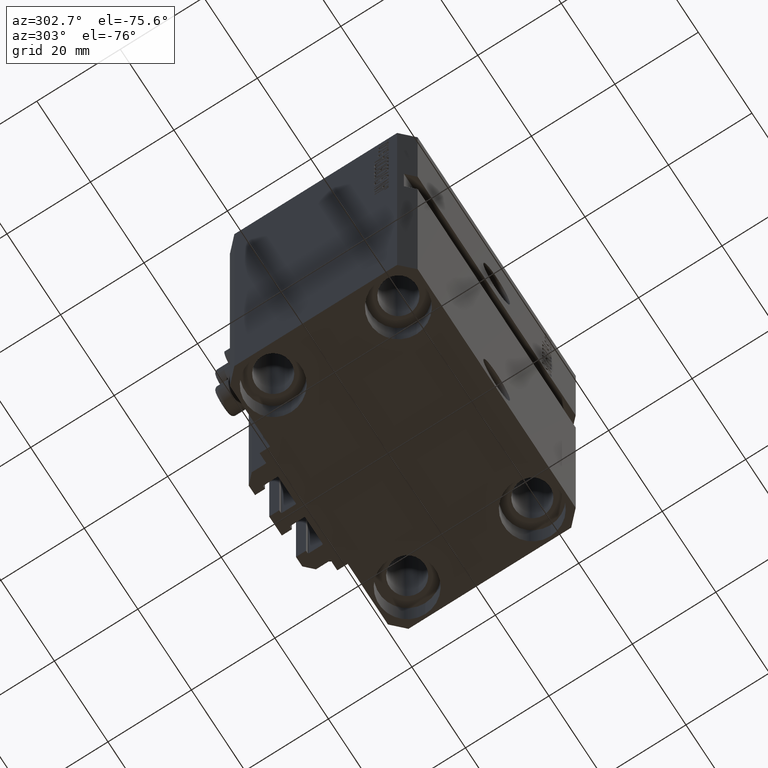
[diagram: clean part render]
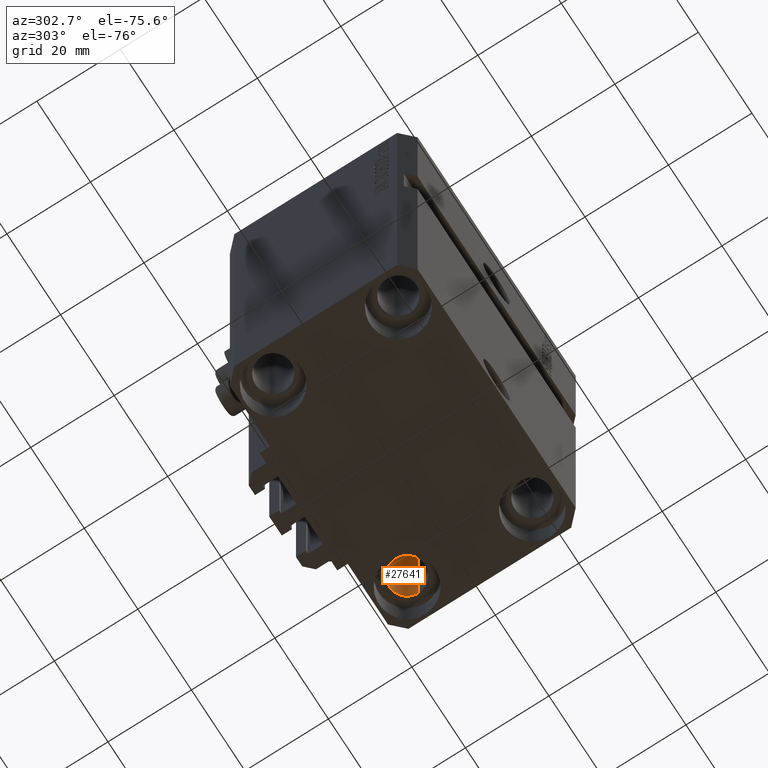
[diagram: same view with one face highlighted and labeled with its STEP entity id]
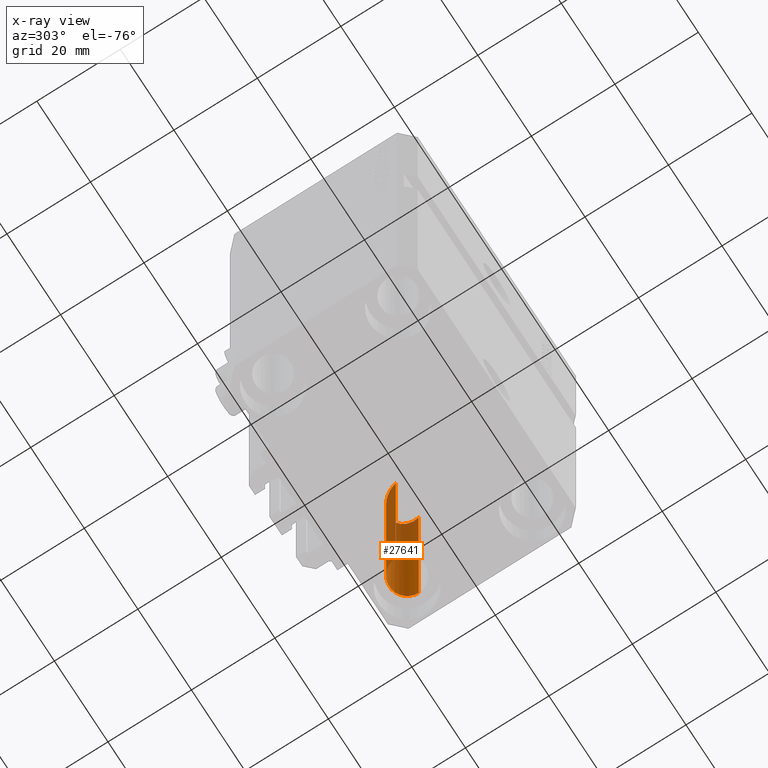
[diagram: x-ray of the same camera — body ghosted, the highlighted face saturated]
A machine part, auxiliary view. The second image highlights one B-rep face of the part: STEP entity #27641.
The next image is the same camera in x-ray: the body ghosted, the highlighted face saturated — about 54% of this face is hidden behind the body in this view.
In plain terms, the highlighted cylindrical surface (edge-blend (fillet) strip) has radius 4.25 mm, axis along (0, 0, 1).
Its self-contained STEP definition (entity closure, byte-faithful):
#196 = CARTESIAN_POINT ( 'NONE',  ( 29.24999999997375255, 15.00000000000000711, -36.99999999999999289 ) ) ;
#1207 = VERTEX_POINT ( 'NONE', #42182 ) ;
#1465 = CARTESIAN_POINT ( 'NONE',  ( 24.99999999999999645, 15.00000000000000888, -98.00000000000000000 ) ) ;
#1676 = VERTEX_POINT ( 'NONE', #46402 ) ;
#1947 = FACE_OUTER_BOUND ( 'NONE', #6336, .T. ) ;
#3867 = ORIENTED_EDGE ( 'NONE', *, *, #11656, .T. ) ;
#5531 = DIRECTION ( 'NONE',  ( -1.000000000000000000, 0.000000000000000000, 0.000000000000000000 ) ) ;
#6336 = EDGE_LOOP ( 'NONE', ( #27133, #3867, #44660, #12498 ) ) ;
#6892 = CARTESIAN_POINT ( 'NONE',  ( 29.24999999995844746, 15.00000000000000888, -107.0000000000000000 ) ) ;
#7594 = CARTESIAN_POINT ( 'NONE',  ( 20.75000000002625100, 23.49999999994750866, -45.49999999994748379 ) ) ;
#11656 = EDGE_CURVE ( 'NONE', #1207, #1676, #32183, .T. ) ;
#12498 = ORIENTED_EDGE ( 'NONE', *, *, #37583, .T. ) ;
#13149 = VERTEX_POINT ( 'NONE', #26860 ) ;
#13771 = DIRECTION ( 'NONE',  ( -0.000000000000000000, -0.000000000000000000, 1.000000000000000000 ) ) ;
#14058 = CARTESIAN_POINT ( 'NONE',  ( 29.24999999997375255, 23.49999999994750866, -45.49999999994748379 ) ) ;
#14761 = CARTESIAN_POINT ( 'NONE',  ( 20.75000000002625100, 15.00000000000000711, -36.99999999999999289 ) ) ;
#15964 = VERTEX_POINT ( 'NONE', #40256 ) ;
#16320 = VECTOR ( 'NONE', #13771, 1000.000000000000000 ) ;
#18734 = EDGE_CURVE ( 'NONE', #1207, #13149, #42184, .T. ) ;
#26316 = DIRECTION ( 'NONE',  ( 1.000000000000000000, 0.000000000000000000, 0.000000000000000000 ) ) ;
#26860 = CARTESIAN_POINT ( 'NONE',  ( 20.75000000002625100, 15.00000000000000711, -36.99999999999999289 ) ) ;
#27133 = ORIENTED_EDGE ( 'NONE', *, *, #18734, .F. ) ;
#27641 = ADVANCED_FACE ( 'NONE', ( #1947 ), #31065, .F. ) ;
#30593 = DIRECTION ( 'NONE',  ( 0.000000000000000000, 0.000000000000000000, -1.000000000000000000 ) ) ;
#31065 = CYLINDRICAL_SURFACE ( 'NONE', #31809, 4.249999999958450125 ) ;
#31219 = CARTESIAN_POINT ( 'NONE',  ( 20.75000000004154899, 15.00000000000000888, -107.0000000000000000 ) ) ;
#31809 = AXIS2_PLACEMENT_3D ( 'NONE', #41793, #40844, #26316 ) ;
#32183 = CIRCLE ( 'NONE', #35998, 4.249999999958450125 ) ;
#35998 = AXIS2_PLACEMENT_3D ( 'NONE', #1465, #30593, #5531 ) ;
#36705 = DIRECTION ( 'NONE',  ( -0.000000000000000000, -0.000000000000000000, 1.000000000000000000 ) ) ;
#37583 = EDGE_CURVE ( 'NONE', #15964, #13149, #44045, .T. ) ;
#37615 = EDGE_CURVE ( 'NONE', #1676, #15964, #43857, .T. ) ;
#38098 = VECTOR ( 'NONE', #36705, 1000.000000000000000 ) ;
#40256 = CARTESIAN_POINT ( 'NONE',  ( 29.24999999997375255, 15.00000000000000711, -36.99999999999999289 ) ) ;
#40844 = DIRECTION ( 'NONE',  ( -0.000000000000000000, -0.000000000000000000, 1.000000000000000000 ) ) ;
#41793 = CARTESIAN_POINT ( 'NONE',  ( 24.99999999999999645, 15.00000000000000888, -107.0000000000000000 ) ) ;
#42182 = CARTESIAN_POINT ( 'NONE',  ( 20.75000000004154899, 15.00000000000000888, -98.00000000000000000 ) ) ;
#42184 = LINE ( 'NONE', #31219, #16320 ) ;
#43857 = LINE ( 'NONE', #6892, #38098 ) ;
#44045 =( BOUNDED_CURVE ( )  B_SPLINE_CURVE ( 3, ( #196, #14058, #7594, #14761 ),
 .UNSPECIFIED., .F., .F. ) 
 B_SPLINE_CURVE_WITH_KNOTS ( ( 4, 4 ),
 ( 1.570796326794896558, 4.712388980384689674 ),
 .UNSPECIFIED. ) 
 CURVE ( )  GEOMETRIC_REPRESENTATION_ITEM ( )  RATIONAL_B_SPLINE_CURVE ( ( 1.000000000000000000, 0.3333333333333333703, 0.3333333333333333703, 1.000000000000000000 ) ) 
 REPRESENTATION_ITEM ( '' )  );
#44660 = ORIENTED_EDGE ( 'NONE', *, *, #37615, .T. ) ;
#46402 = CARTESIAN_POINT ( 'NONE',  ( 29.24999999995844746, 15.00000000000000888, -98.00000000000000000 ) ) ;